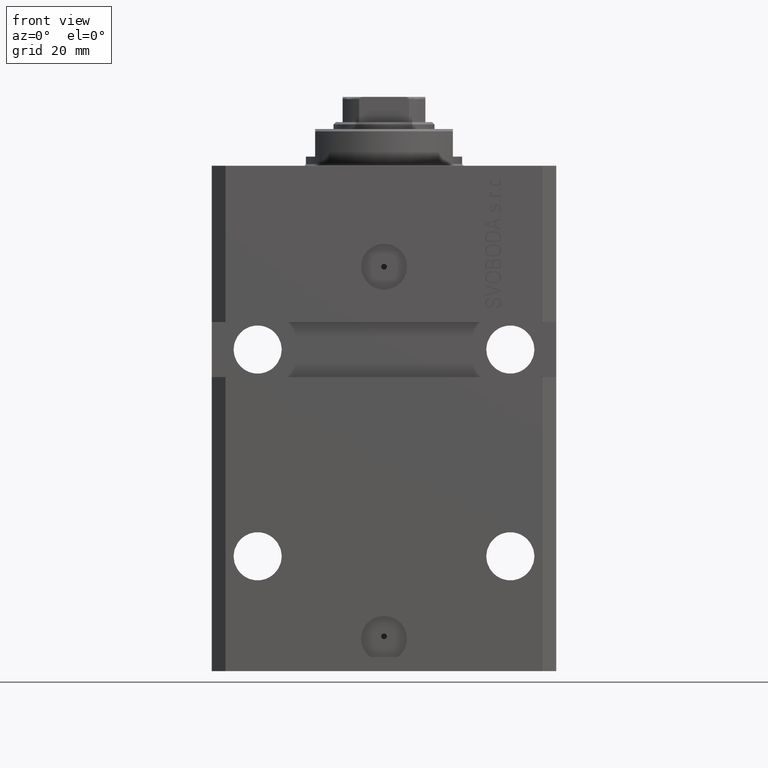
[diagram: clean part render]
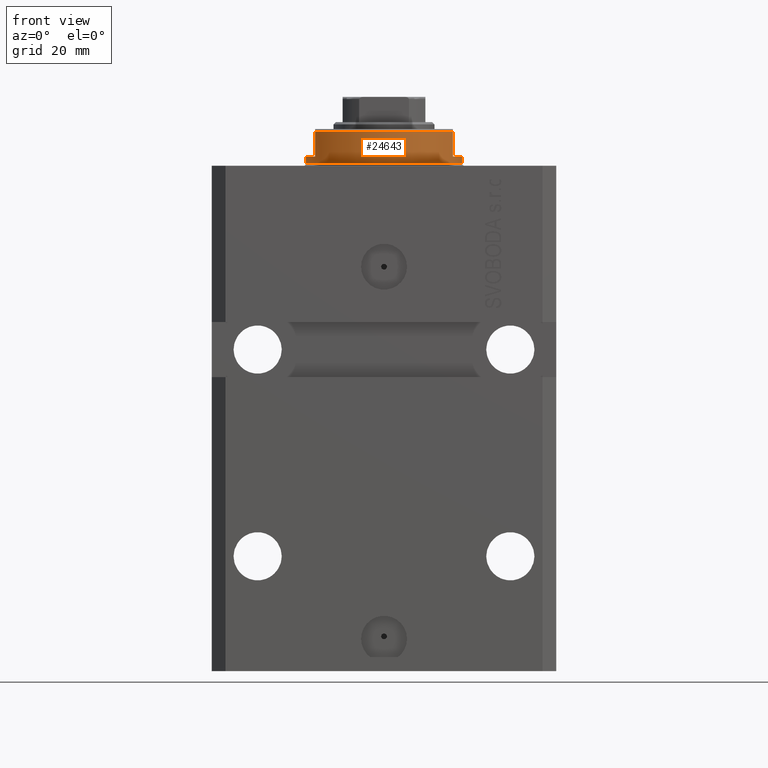
[diagram: same view with one face highlighted and labeled with its STEP entity id]
A machine part, front view. The second image highlights one B-rep face of the part: STEP entity #24643.
In plain terms, the highlighted cylindrical surface (partial cylindrical patch) has radius 17 mm, axis along (0, 0, -1).
Its self-contained STEP definition (entity closure, byte-faithful):
#639 = EDGE_CURVE ( 'NONE', #37201, #41222, #1029, .T. ) ;
#1029 = LINE ( 'NONE', #45093, #4459 ) ;
#1663 = CARTESIAN_POINT ( 'NONE',  ( 0.000000000000000000, 0.000000000000000000, -0.5000000000000004441 ) ) ;
#2302 = ORIENTED_EDGE ( 'NONE', *, *, #39464, .F. ) ;
#4459 = VECTOR ( 'NONE', #11674, 1000.000000000000000 ) ;
#4944 = VERTEX_POINT ( 'NONE', #33635 ) ;
#6192 = CIRCLE ( 'NONE', #6948, 17.00000000000000000 ) ;
#6948 = AXIS2_PLACEMENT_3D ( 'NONE', #34036, #44929, #9075 ) ;
#7077 = CIRCLE ( 'NONE', #46518, 17.00000000000000000 ) ;
#7608 = VECTOR ( 'NONE', #34205, 1000.000000000000000 ) ;
#8238 = DIRECTION ( 'NONE',  ( 0.000000000000000000, 0.000000000000000000, -1.000000000000000000 ) ) ;
#8350 = ORIENTED_EDGE ( 'NONE', *, *, #17519, .T. ) ;
#8817 = ORIENTED_EDGE ( 'NONE', *, *, #9003, .F. ) ;
#9003 = EDGE_CURVE ( 'NONE', #16567, #25707, #23514, .T. ) ;
#9075 = DIRECTION ( 'NONE',  ( -1.000000000000000000, 0.000000000000000000, 0.000000000000000000 ) ) ;
#9520 = AXIS2_PLACEMENT_3D ( 'NONE', #1663, #31668, #32144 ) ;
#9976 = DIRECTION ( 'NONE',  ( 0.000000000000000000, 0.000000000000000000, 1.000000000000000000 ) ) ;
#11674 = DIRECTION ( 'NONE',  ( 0.000000000000000000, 0.000000000000000000, -1.000000000000000000 ) ) ;
#13469 = EDGE_CURVE ( 'NONE', #47275, #41222, #7077, .T. ) ;
#14323 = CARTESIAN_POINT ( 'NONE',  ( 0.000000000000000000, 0.000000000000000000, -7.500000000000007105 ) ) ;
#14753 = CARTESIAN_POINT ( 'NONE',  ( 17.00000000000000000, 0.000000000000000000, -8.000000000000000000 ) ) ;
#14950 = CARTESIAN_POINT ( 'NONE',  ( -17.00000000000000000, 2.081899558550500280E-15, -0.5000000000000004441 ) ) ;
#16567 = VERTEX_POINT ( 'NONE', #35242 ) ;
#17519 = EDGE_CURVE ( 'NONE', #26951, #25707, #33486, .T. ) ;
#18619 = CARTESIAN_POINT ( 'NONE',  ( 15.00000000000000000, -8.000000000000001776, -7.500000000000007105 ) ) ;
#19864 = DIRECTION ( 'NONE',  ( -0.000000000000000000, -0.000000000000000000, 1.000000000000000000 ) ) ;
#20310 = DIRECTION ( 'NONE',  ( -0.000000000000000000, -0.000000000000000000, 1.000000000000000000 ) ) ;
#21627 = ORIENTED_EDGE ( 'NONE', *, *, #13469, .T. ) ;
#22030 = DIRECTION ( 'NONE',  ( -0.000000000000000000, -0.000000000000000000, 1.000000000000000000 ) ) ;
#22825 = LINE ( 'NONE', #33717, #7608 ) ;
#23514 = LINE ( 'NONE', #41908, #31001 ) ;
#24412 = EDGE_LOOP ( 'NONE', ( #8817, #2302, #34233, #21627, #32782, #29222, #39592, #8350 ) ) ;
#24643 = ADVANCED_FACE ( 'NONE', ( #25322 ), #35976, .T. ) ;
#25322 = FACE_OUTER_BOUND ( 'NONE', #24412, .T. ) ;
#25707 = VERTEX_POINT ( 'NONE', #14950 ) ;
#26951 = VERTEX_POINT ( 'NONE', #40153 ) ;
#28698 = CARTESIAN_POINT ( 'NONE',  ( 0.000000000000000000, 0.000000000000000000, -8.000000000000000000 ) ) ;
#29222 = ORIENTED_EDGE ( 'NONE', *, *, #30869, .F. ) ;
#29519 = LINE ( 'NONE', #14753, #39625 ) ;
#30869 = EDGE_CURVE ( 'NONE', #34286, #37201, #42353, .T. ) ;
#31001 = VECTOR ( 'NONE', #19864, 1000.000000000000000 ) ;
#31401 = AXIS2_PLACEMENT_3D ( 'NONE', #28698, #20310, #32103 ) ;
#31668 = DIRECTION ( 'NONE',  ( -0.000000000000000000, -0.000000000000000000, -1.000000000000000000 ) ) ;
#32103 = DIRECTION ( 'NONE',  ( 1.000000000000000000, 0.000000000000000000, 0.000000000000000000 ) ) ;
#32144 = DIRECTION ( 'NONE',  ( 1.000000000000000000, 0.000000000000000000, 0.000000000000000000 ) ) ;
#32254 = DIRECTION ( 'NONE',  ( -1.000000000000000000, 0.000000000000000000, 0.000000000000000000 ) ) ;
#32584 = CARTESIAN_POINT ( 'NONE',  ( 17.00000000000000000, 0.000000000000000000, -2.000000000000000000 ) ) ;
#32782 = ORIENTED_EDGE ( 'NONE', *, *, #639, .F. ) ;
#33486 = CIRCLE ( 'NONE', #9520, 17.00000000000000000 ) ;
#33635 = CARTESIAN_POINT ( 'NONE',  ( -14.99999999999999645, -8.000000000000003553, -2.000000000000000000 ) ) ;
#33717 = CARTESIAN_POINT ( 'NONE',  ( -15.00000000000000000, -8.000000000000001776, -8.000000000000000000 ) ) ;
#34036 = CARTESIAN_POINT ( 'NONE',  ( 0.000000000000000000, 0.000000000000000000, -2.000000000000000000 ) ) ;
#34205 = DIRECTION ( 'NONE',  ( 0.000000000000000000, 0.000000000000000000, -1.000000000000000000 ) ) ;
#34233 = ORIENTED_EDGE ( 'NONE', *, *, #35513, .T. ) ;
#34286 = VERTEX_POINT ( 'NONE', #32584 ) ;
#35242 = CARTESIAN_POINT ( 'NONE',  ( -17.00000000000000000, 2.081899558550500280E-15, -2.000000000000000000 ) ) ;
#35513 = EDGE_CURVE ( 'NONE', #4944, #47275, #22825, .T. ) ;
#35976 = CYLINDRICAL_SURFACE ( 'NONE', #31401, 17.00000000000000000 ) ;
#36957 = CARTESIAN_POINT ( 'NONE',  ( 14.99999999999999645, -8.000000000000003553, -2.000000000000000000 ) ) ;
#37201 = VERTEX_POINT ( 'NONE', #36957 ) ;
#38027 = CARTESIAN_POINT ( 'NONE',  ( 0.000000000000000000, 0.000000000000000000, -2.000000000000000000 ) ) ;
#38784 = CARTESIAN_POINT ( 'NONE',  ( -15.00000000000000000, -8.000000000000001776, -7.500000000000007105 ) ) ;
#39464 = EDGE_CURVE ( 'NONE', #4944, #16567, #6192, .T. ) ;
#39592 = ORIENTED_EDGE ( 'NONE', *, *, #44908, .T. ) ;
#39625 = VECTOR ( 'NONE', #22030, 1000.000000000000000 ) ;
#40153 = CARTESIAN_POINT ( 'NONE',  ( 17.00000000000000000, 0.000000000000000000, -0.5000000000000004441 ) ) ;
#41222 = VERTEX_POINT ( 'NONE', #18619 ) ;
#41908 = CARTESIAN_POINT ( 'NONE',  ( -17.00000000000000000, 2.081899558550500280E-15, -8.000000000000000000 ) ) ;
#42353 = CIRCLE ( 'NONE', #47782, 17.00000000000000000 ) ;
#44908 = EDGE_CURVE ( 'NONE', #34286, #26951, #29519, .T. ) ;
#44929 = DIRECTION ( 'NONE',  ( 0.000000000000000000, 0.000000000000000000, -1.000000000000000000 ) ) ;
#45093 = CARTESIAN_POINT ( 'NONE',  ( 15.00000000000000000, -8.000000000000001776, -8.000000000000000000 ) ) ;
#45280 = DIRECTION ( 'NONE',  ( -1.000000000000000000, 0.000000000000000000, 0.000000000000000000 ) ) ;
#46518 = AXIS2_PLACEMENT_3D ( 'NONE', #14323, #9976, #32254 ) ;
#47275 = VERTEX_POINT ( 'NONE', #38784 ) ;
#47782 = AXIS2_PLACEMENT_3D ( 'NONE', #38027, #8238, #45280 ) ;